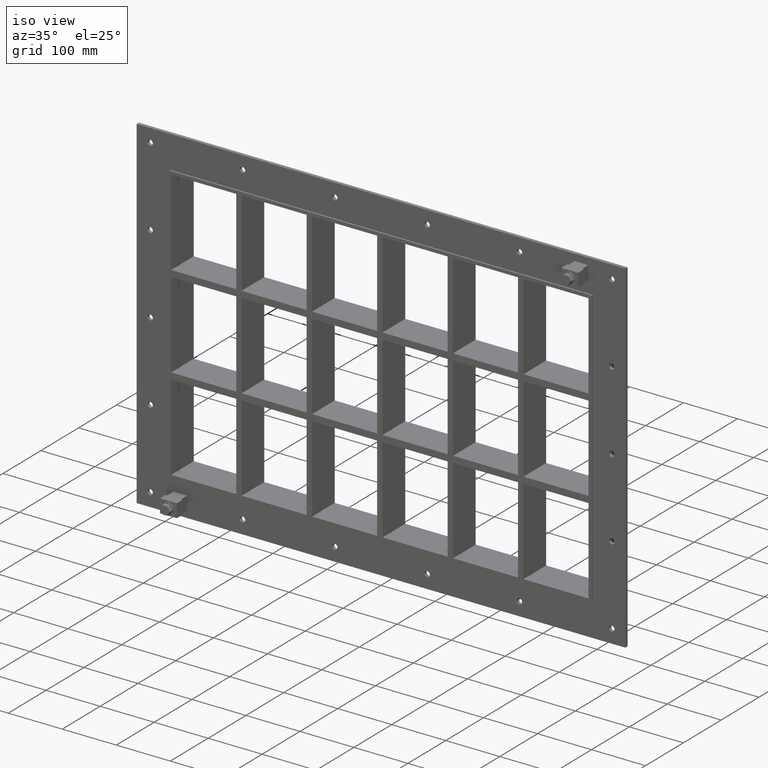
[diagram: clean part render]
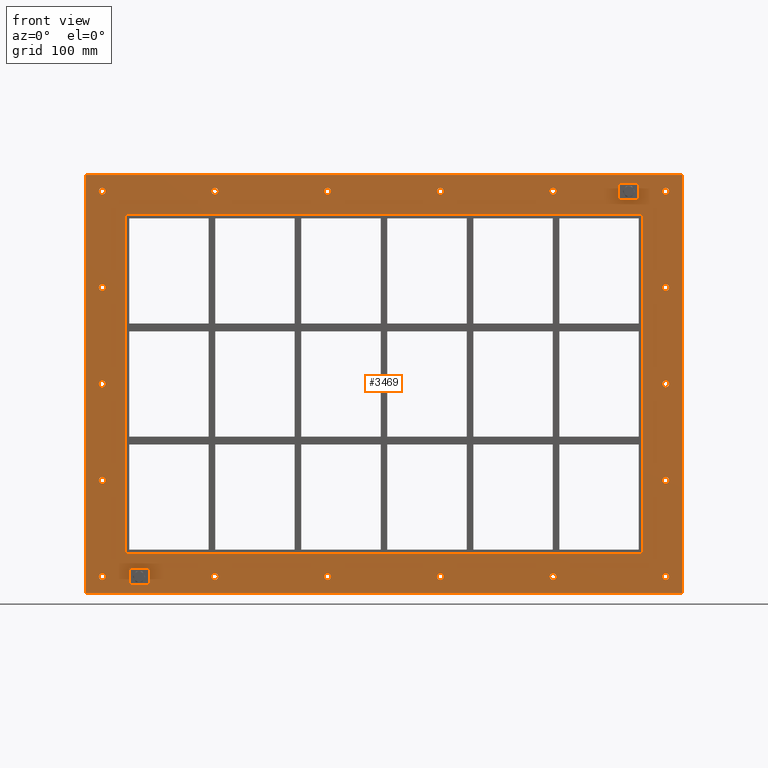
[diagram: tour spotlight — one face highlighted and labeled with its STEP entity id]
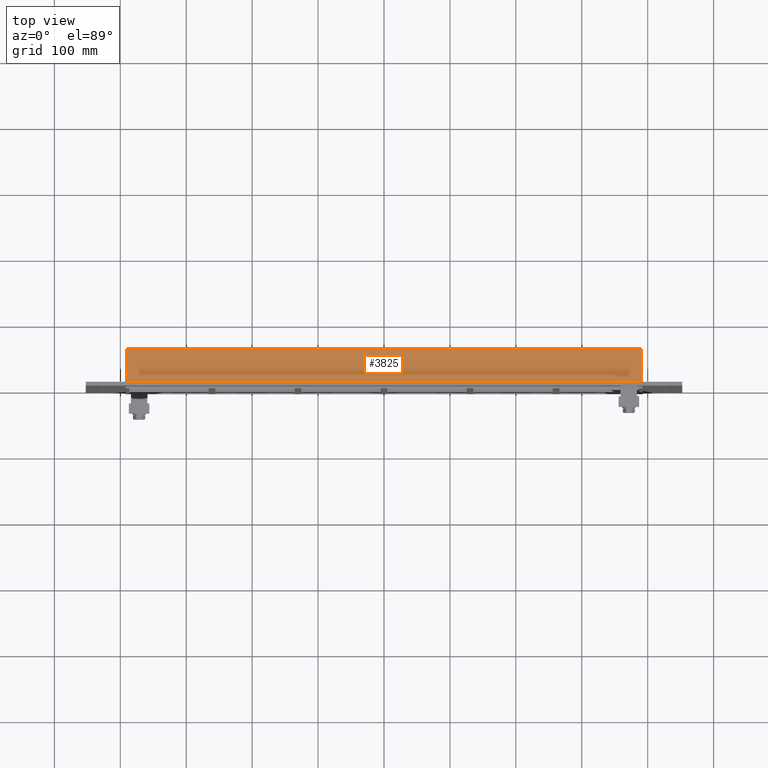
[diagram: tour spotlight — one face highlighted and labeled with its STEP entity id]
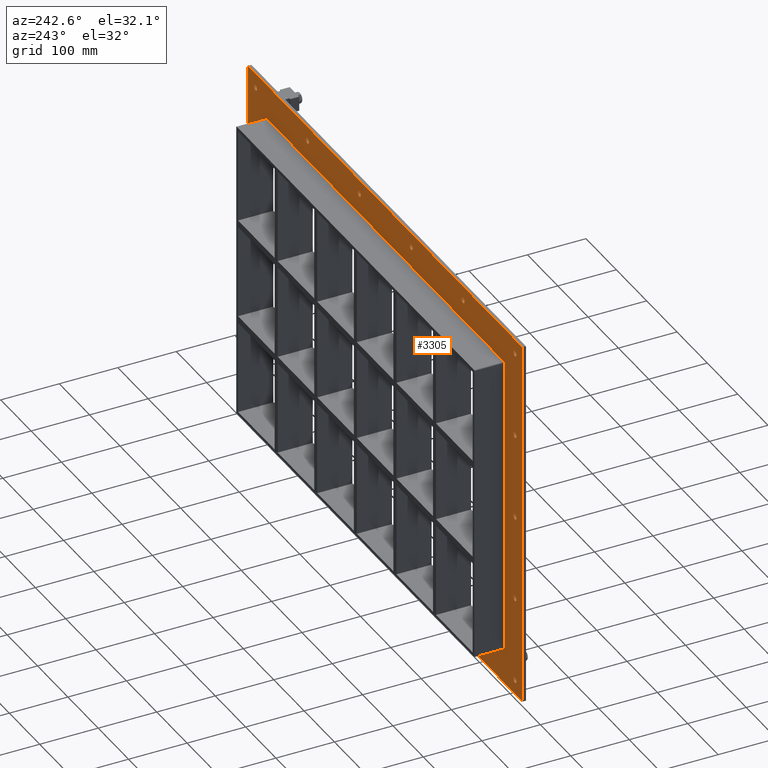
[diagram: tour spotlight — one face highlighted and labeled with its STEP entity id]
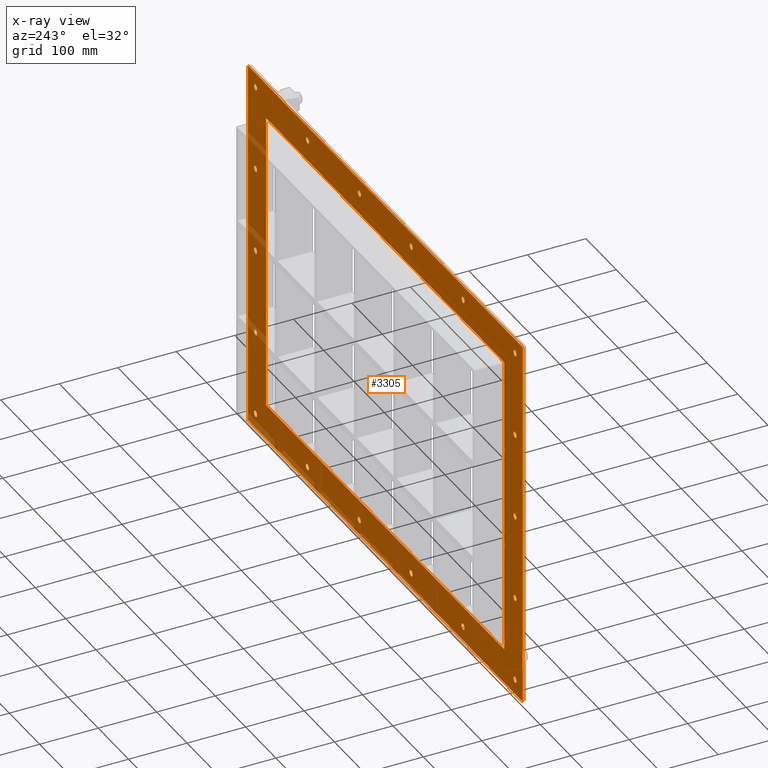
[diagram: x-ray of the same camera — body ghosted, this tour face saturated]
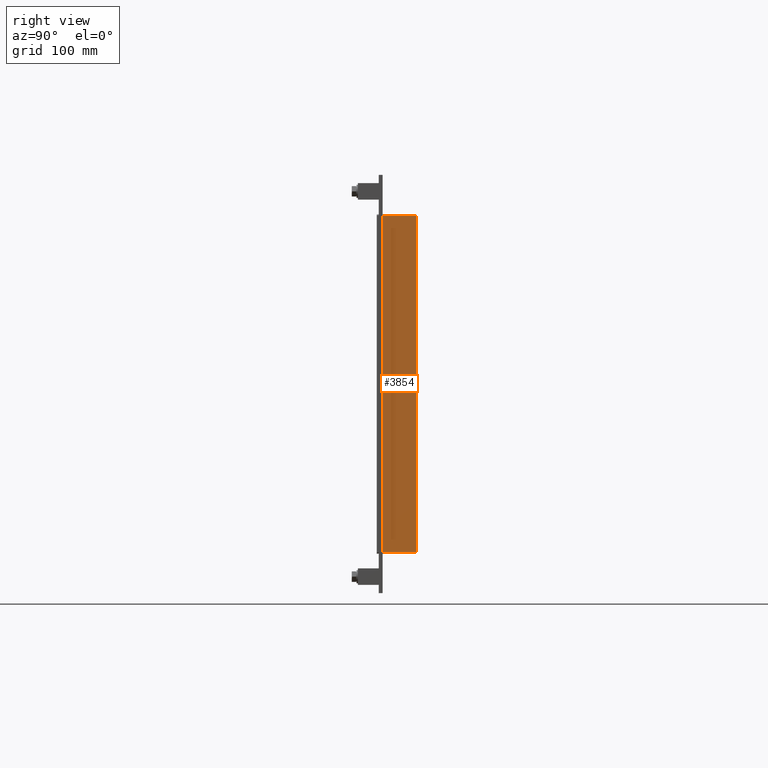
[diagram: tour spotlight — one face highlighted and labeled with its STEP entity id]
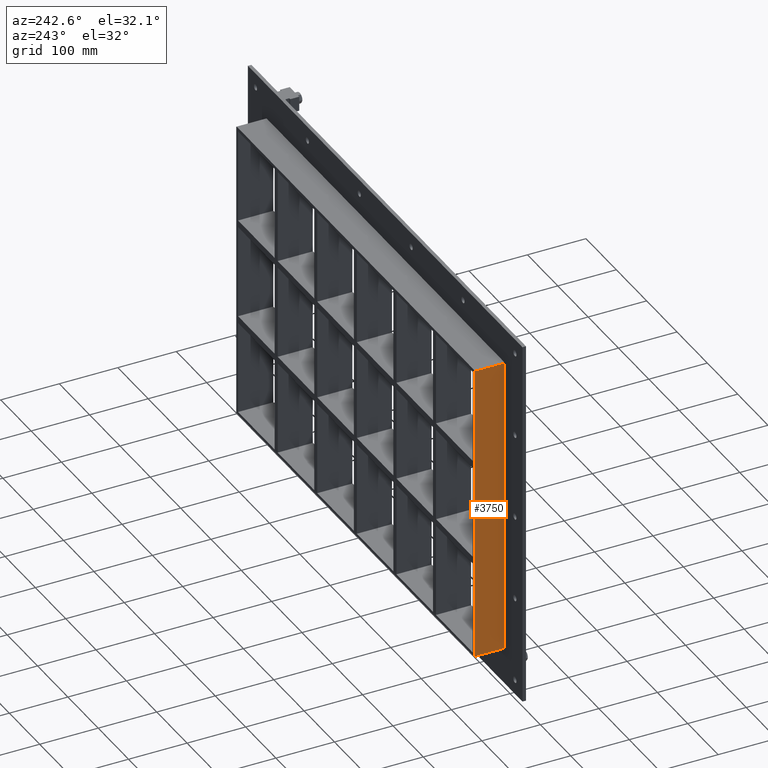
[diagram: tour spotlight — one face highlighted and labeled with its STEP entity id]
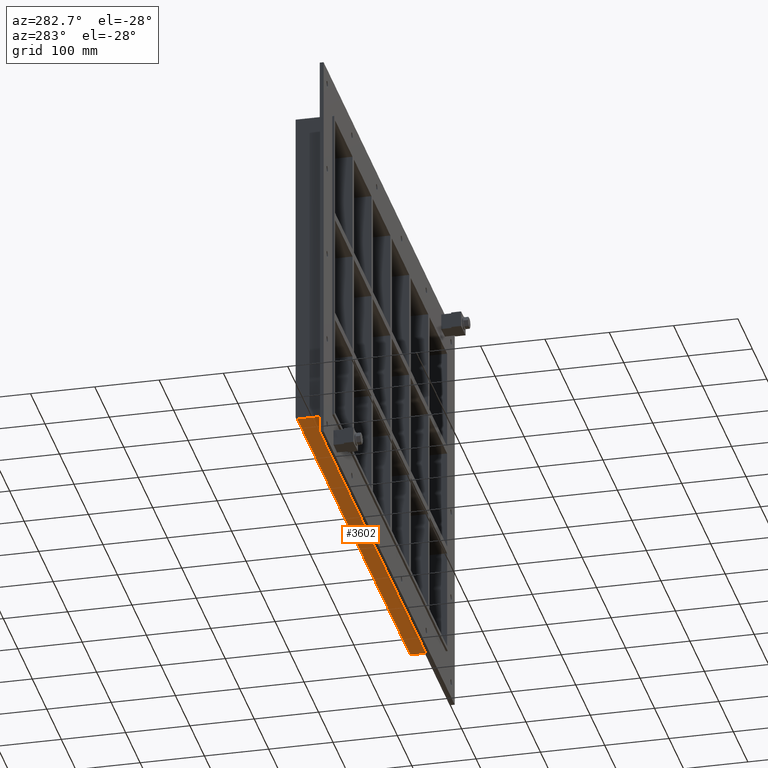
[diagram: tour spotlight — one face highlighted and labeled with its STEP entity id]
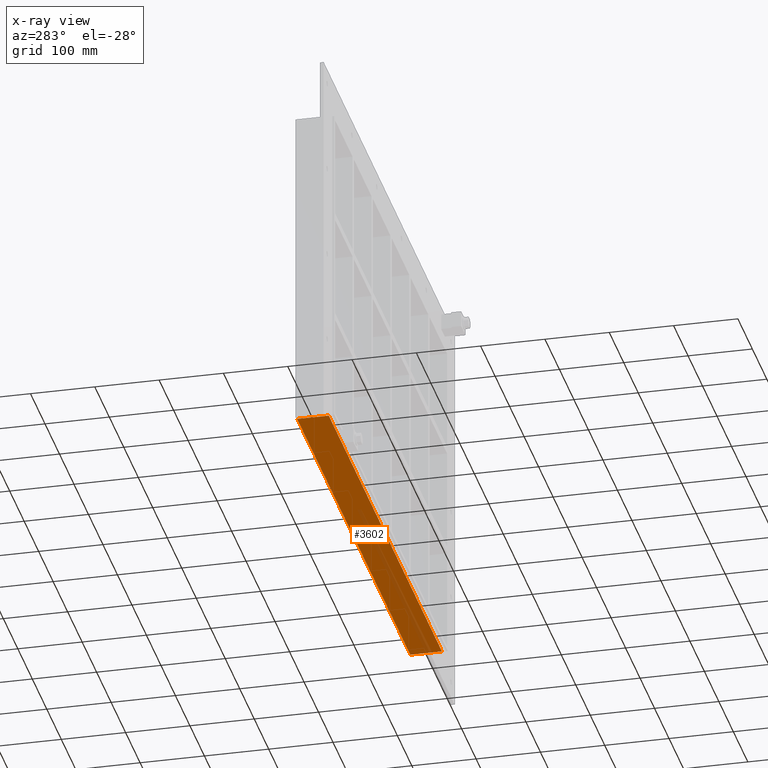
[diagram: x-ray of the same camera — body ghosted, this tour face saturated]
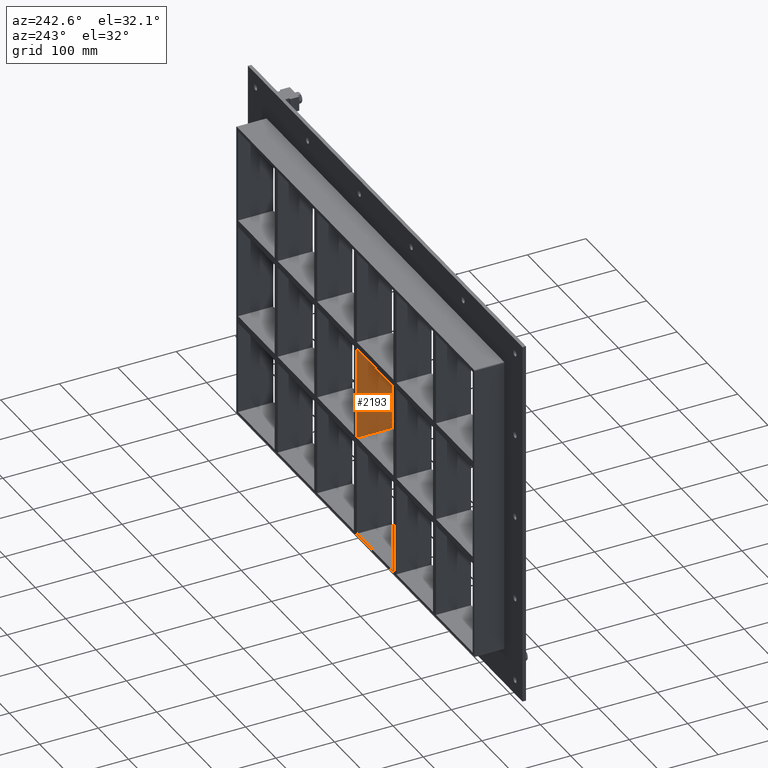
[diagram: tour spotlight — one face highlighted and labeled with its STEP entity id]
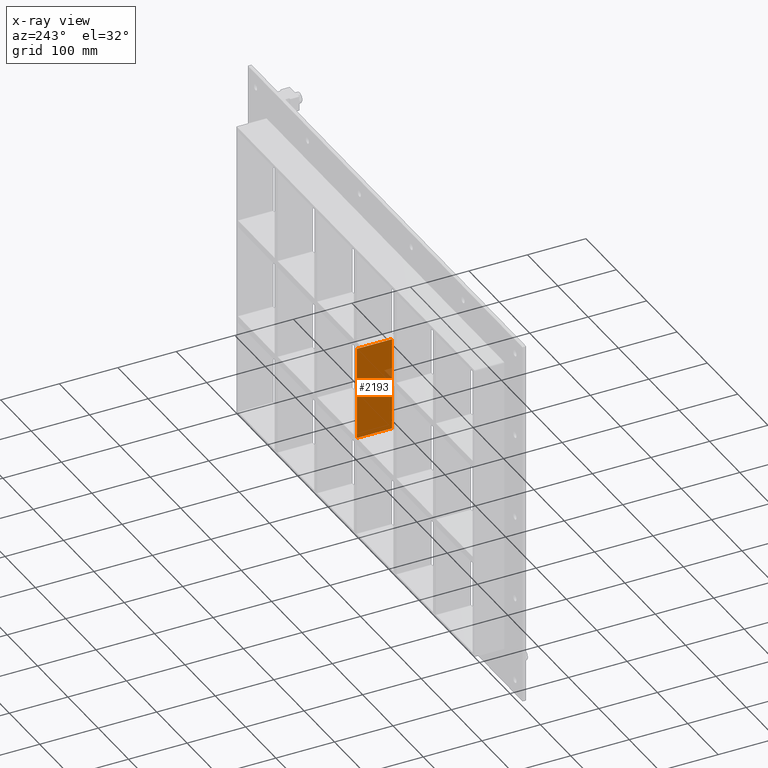
[diagram: x-ray of the same camera — body ghosted, this tour face saturated]
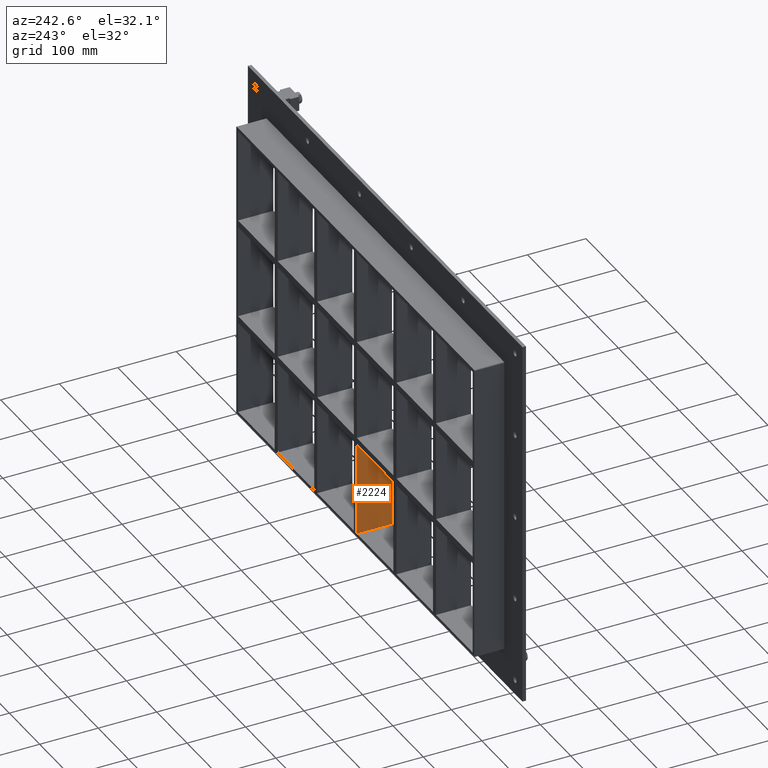
[diagram: tour spotlight — one face highlighted and labeled with its STEP entity id]
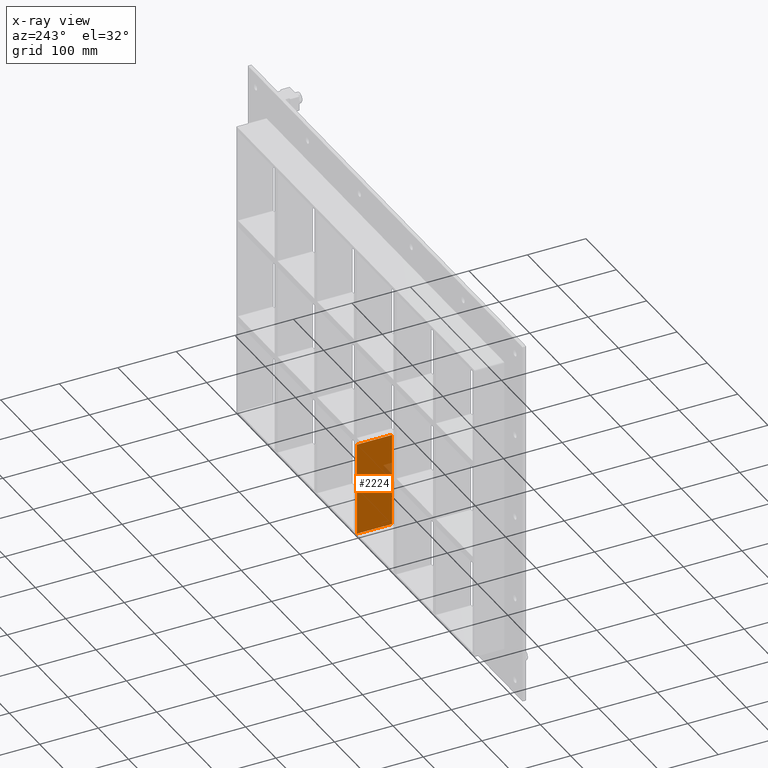
[diagram: x-ray of the same camera — body ghosted, this tour face saturated]
A machine part: a face-by-face anatomy tour. The part has 193 B-rep faces; the first image is the clean iso view, then the 8 largest visible faces are spotlighted one at a time (largest first), each with its STEP entity span.

Face 1 — front view, entity #3469. In plain terms, the highlighted planar face has unit normal (0, 1, 0).
Definition (entity closure, byte-faithful):
#84=CARTESIAN_POINT('',(-422.50000000000006,0.0,-292.25));
#85=VERTEX_POINT('',#84);
#86=CARTESIAN_POINT('',(-427.50000000000006,0.0,-292.25));
#87=DIRECTION('',(0.0,1.0,0.0));
#88=DIRECTION('',(1.0,0.0,0.0));
#89=AXIS2_PLACEMENT_3D('',#86,#87,#88);
#90=CIRCLE('',#89,5.0);
#91=EDGE_CURVE('',#85,#85,#90,.T.);
#112=CARTESIAN_POINT('',(432.49999999999994,0.0,-146.05000000000007));
#113=VERTEX_POINT('',#112);
#114=CARTESIAN_POINT('',(427.49999999999994,0.0,-146.05000000000007));
#115=DIRECTION('',(0.0,1.0,0.0));
#116=DIRECTION('',(1.0,0.0,0.0));
#117=AXIS2_PLACEMENT_3D('',#114,#115,#116);
#118=CIRCLE('',#117,5.0);
#119=EDGE_CURVE('',#113,#113,#118,.T.);
#140=CARTESIAN_POINT('',(-422.50000000000006,0.0,-146.05000000000007));
#141=VERTEX_POINT('',#140);
#142=CARTESIAN_POINT('',(-427.50000000000006,0.0,-146.05000000000007));
#143=DIRECTION('',(0.0,1.0,0.0));
#144=DIRECTION('',(1.0,0.0,0.0));
#145=AXIS2_PLACEMENT_3D('',#142,#143,#144);
#146=CIRCLE('',#145,5.0);
#147=EDGE_CURVE('',#141,#141,#146,.T.);
#168=CARTESIAN_POINT('',(432.49999999999994,0.0,0.14999999999997));
#169=VERTEX_POINT('',#168);
#170=CARTESIAN_POINT('',(427.49999999999994,0.0,0.14999999999997));
#171=DIRECTION('',(0.0,1.0,0.0));
#172=DIRECTION('',(1.0,0.0,0.0));
#173=AXIS2_PLACEMENT_3D('',#170,#171,#172);
#174=CIRCLE('',#173,5.0);
#175=EDGE_CURVE('',#169,#169,#174,.T.);
#196=CARTESIAN_POINT('',(-422.50000000000006,0.0,0.14999999999997));
#197=VERTEX_POINT('',#196);
#198=CARTESIAN_POINT('',(-427.50000000000006,0.0,0.14999999999997));
#199=DIRECTION('',(0.0,1.0,0.0));
#200=DIRECTION('',(1.0,0.0,0.0));
#201=AXIS2_PLACEMENT_3D('',#198,#199,#200);
#202=CIRCLE('',#201,5.0);
#203=EDGE_CURVE('',#197,#197,#202,.T.);
#224=CARTESIAN_POINT('',(432.49999999999994,0.0,146.34999999999997));
#225=VERTEX_POINT('',#224);
#226=CARTESIAN_POINT('',(427.49999999999994,0.0,146.34999999999997));
#227=DIRECTION('',(0.0,1.0,0.0));
#228=DIRECTION('',(1.0,0.0,0.0));
#229=AXIS2_PLACEMENT_3D('',#226,#227,#228);
#230=CIRCLE('',#229,5.0);
#231=EDGE_CURVE('',#225,#225,#230,.T.);
#252=CARTESIAN_POINT('',(-422.50000000000006,0.0,146.34999999999997));
#253=VERTEX_POINT('',#252);
#254=CARTESIAN_POINT('',(-427.50000000000006,0.0,146.34999999999997));
#255=DIRECTION('',(0.0,1.0,0.0));
#256=DIRECTION('',(1.0,0.0,0.0));
#257=AXIS2_PLACEMENT_3D('',#254,#255,#256);
#258=CIRCLE('',#257,5.0);
#259=EDGE_CURVE('',#253,#253,#258,.T.);
#280=CARTESIAN_POINT('',(-251.50000000000011,0.0,292.54999999999995));
#281=VERTEX_POINT('',#280);
#282=CARTESIAN_POINT('',(-256.50000000000011,0.0,292.54999999999995));
#283=DIRECTION('',(0.0,1.0,0.0));
#284=DIRECTION('',(1.0,0.0,0.0));
#285=AXIS2_PLACEMENT_3D('',#282,#283,#284);
#286=CIRCLE('',#285,5.0);
#287=EDGE_CURVE('',#281,#281,#286,.T.);
#308=CARTESIAN_POINT('',(-251.50000000000011,0.0,-292.25));
#309=VERTEX_POINT('',#308);
#310=CARTESIAN_POINT('',(-256.50000000000011,0.0,-292.25));
#311=DIRECTION('',(0.0,1.0,0.0));
#312=DIRECTION('',(1.0,0.0,0.0));
#313=AXIS2_PLACEMENT_3D('',#310,#311,#312);
#314=CIRCLE('',#313,5.0);
#315=EDGE_CURVE('',#309,#309,#314,.T.);
#336=CARTESIAN_POINT('',(-80.500000000000114,0.0,292.54999999999995));
#337=VERTEX_POINT('',#336);
#338=CARTESIAN_POINT('',(-85.500000000000114,0.0,292.54999999999995));
#339=DIRECTION('',(0.0,1.0,0.0));
#340=DIRECTION('',(1.0,0.0,0.0));
#341=AXIS2_PLACEMENT_3D('',#338,#339,#340);
#342=CIRCLE('',#341,5.0);
#343=EDGE_CURVE('',#337,#337,#342,.T.);
#364=CARTESIAN_POINT('',(-80.500000000000114,0.0,-292.25));
#365=VERTEX_POINT('',#364);
#366=CARTESIAN_POINT('',(-85.500000000000114,0.0,-292.25));
#367=DIRECTION('',(0.0,1.0,0.0));
#368=DIRECTION('',(1.0,0.0,0.0));
#369=AXIS2_PLACEMENT_3D('',#366,#367,#368);
#370=CIRCLE('',#369,5.0);
#371=EDGE_CURVE('',#365,#365,#370,.T.);
#392=CARTESIAN_POINT('',(90.499999999999901,0.0,292.54999999999995));
#393=VERTEX_POINT('',#392);
#394=CARTESIAN_POINT('',(85.499999999999901,0.0,292.54999999999995));
#395=DIRECTION('',(0.0,1.0,0.0));
#396=DIRECTION('',(1.0,0.0,0.0));
#397=AXIS2_PLACEMENT_3D('',#394,#395,#396);
#398=CIRCLE('',#397,5.0);
#399=EDGE_CURVE('',#393,#393,#398,.T.);
#420=CARTESIAN_POINT('',(90.499999999999901,0.0,-292.25));
#421=VERTEX_POINT('',#420);
#422=CARTESIAN_POINT('',(85.499999999999901,0.0,-292.25));
#423=DIRECTION('',(0.0,1.0,0.0));
#424=DIRECTION('',(1.0,0.0,0.0));
#425=AXIS2_PLACEMENT_3D('',#422,#423,#424);
#426=CIRCLE('',#425,5.0);
#427=EDGE_CURVE('',#421,#421,#426,.T.);
#448=CARTESIAN_POINT('',(261.49999999999989,0.0,292.54999999999995));
#449=VERTEX_POINT('',#448);
#450=CARTESIAN_POINT('',(256.49999999999989,0.0,292.54999999999995));
#451=DIRECTION('',(0.0,1.0,0.0));
#452=DIRECTION('',(1.0,0.0,0.0));
#453=AXIS2_PLACEMENT_3D('',#450,#451,#452);
#454=CIRCLE('',#453,5.0);
#455=EDGE_CURVE('',#449,#449,#454,.T.);
#476=CARTESIAN_POINT('',(261.49999999999989,0.0,-292.25));
#477=VERTEX_POINT('',#476);
#478=CARTESIAN_POINT('',(256.49999999999989,0.0,-292.25));
#479=DIRECTION('',(0.0,1.0,0.0));
#480=DIRECTION('',(1.0,0.0,0.0));
#481=AXIS2_PLACEMENT_3D('',#478,#479,#480);
#482=CIRCLE('',#481,5.0);
#483=EDGE_CURVE('',#477,#477,#482,.T.);
#504=CARTESIAN_POINT('',(432.49999999999994,0.0,-292.25));
#505=VERTEX_POINT('',#504);
#506=CARTESIAN_POINT('',(427.49999999999994,0.0,-292.25));
#507=DIRECTION('',(0.0,1.0,0.0));
#508=DIRECTION('',(1.0,0.0,0.0));
#509=AXIS2_PLACEMENT_3D('',#506,#507,#508);
#510=CIRCLE('',#509,5.0);
#511=EDGE_CURVE('',#505,#505,#510,.T.);
#532=CARTESIAN_POINT('',(-422.50000000000006,0.0,292.54999999999995));
#533=VERTEX_POINT('',#532);
#534=CARTESIAN_POINT('',(-427.50000000000006,0.0,292.54999999999995));
#535=DIRECTION('',(0.0,1.0,0.0));
#536=DIRECTION('',(1.0,0.0,0.0));
#537=AXIS2_PLACEMENT_3D('',#534,#535,#536);
#538=CIRCLE('',#537,5.0);
#539=EDGE_CURVE('',#533,#533,#538,.T.);
#560=CARTESIAN_POINT('',(432.49999999999994,0.0,292.54999999999995));
#561=VERTEX_POINT('',#560);
#562=CARTESIAN_POINT('',(427.49999999999994,0.0,292.54999999999995));
#563=DIRECTION('',(0.0,1.0,0.0));
#564=DIRECTION('',(1.0,0.0,0.0));
#565=AXIS2_PLACEMENT_3D('',#562,#563,#564);
#566=CIRCLE('',#565,5.0);
#567=EDGE_CURVE('',#561,#561,#566,.T.);
#3306=CARTESIAN_POINT('',(4.430796E-014,0.0,0.0));
#3307=DIRECTION('',(0.0,1.0,0.0));
#3308=DIRECTION('',(0.0,0.0,1.0));
#3309=AXIS2_PLACEMENT_3D('',#3306,#3307,#3308);
#3310=PLANE('',#3309);
#3311=CARTESIAN_POINT('',(-452.5,0.0,317.25));
#3312=VERTEX_POINT('',#3311);
#3313=CARTESIAN_POINT('',(452.50000000000006,0.0,317.25));
#3314=VERTEX_POINT('',#3313);
#3315=CARTESIAN_POINT('',(-452.5,0.0,317.25));
#3316=DIRECTION('',(1.0,0.0,0.0));
#3317=VECTOR('',#3316,905.0);
#3318=LINE('',#3315,#3317);
#3319=EDGE_CURVE('',#3312,#3314,#3318,.T.);
#3320=ORIENTED_EDGE('',*,*,#3319,.F.);
#3321=CARTESIAN_POINT('',(-452.5,0.0,-317.25));
#3322=VERTEX_POINT('',#3321);
#3323=CARTESIAN_POINT('',(-452.5,0.0,-317.25));
#3324=DIRECTION('',(0.0,0.0,1.0));
#3325=VECTOR('',#3324,634.5);
#3326=LINE('',#3323,#3325);
#3327=EDGE_CURVE('',#3322,#3312,#3326,.T.);
#3328=ORIENTED_EDGE('',*,*,#3327,.F.);
#3329=CARTESIAN_POINT('',(452.50000000000006,0.0,-317.25));
#3330=VERTEX_POINT('',#3329);
#3331=CARTESIAN_POINT('',(452.50000000000006,0.0,-317.25));
#3332=DIRECTION('',(-1.0,0.0,0.0));
#3333=VECTOR('',#3332,905.0);
#3334=LINE('',#3331,#3333);
#3335=EDGE_CURVE('',#3330,#3322,#3334,.T.);
#3336=ORIENTED_EDGE('',*,*,#3335,.F.);
#3337=CARTESIAN_POINT('',(452.50000000000006,0.0,317.25));
#3338=DIRECTION('',(0.0,0.0,-1.0));
#3339=VECTOR('',#3338,634.5);
#3340=LINE('',#3337,#3339);
#3341=EDGE_CURVE('',#3314,#3330,#3340,.T.);
#3342=ORIENTED_EDGE('',*,*,#3341,.F.);
#3343=EDGE_LOOP('',(#3320,#3328,#3336,#3342));
#3344=FACE_OUTER_BOUND('',#3343,.T.);
#3345=ORIENTED_EDGE('',*,*,#91,.T.);
#3346=EDGE_LOOP('',(#3345));
#3347=FACE_BOUND('',#3346,.T.);
#3348=ORIENTED_EDGE('',*,*,#119,.T.);
#3349=EDGE_LOOP('',(#3348));
#3350=FACE_BOUND('',#3349,.T.);
#3351=ORIENTED_EDGE('',*,*,#147,.T.);
#3352=EDGE_LOOP('',(#3351));
#3353=FACE_BOUND('',#3352,.T.);
#3354=ORIENTED_EDGE('',*,*,#175,.T.);
#3355=EDGE_LOOP('',(#3354));
#3356=FACE_BOUND('',#3355,.T.);
#3357=ORIENTED_EDGE('',*,*,#203,.T.);
#3358=EDGE_LOOP('',(#3357));
#3359=FACE_BOUND('',#3358,.T.);
#3360=ORIENTED_EDGE('',*,*,#231,.T.);
#3361=EDGE_LOOP('',(#3360));
#3362=FACE_BOUND('',#3361,.T.);
#3363=ORIENTED_EDGE('',*,*,#259,.T.);
#3364=EDGE_LOOP('',(#3363));
#3365=FACE_BOUND('',#3364,.T.);
#3366=ORIENTED_EDGE('',*,*,#287,.T.);
#3367=EDGE_LOOP('',(#3366));
#3368=FACE_BOUND('',#3367,.T.);
#3369=ORIENTED_EDGE('',*,*,#315,.T.);
#3370=EDGE_LOOP('',(#3369));
#3371=FACE_BOUND('',#3370,.T.);
#3372=ORIENTED_EDGE('',*,*,#343,.T.);
#3373=EDGE_LOOP('',(#3372));
#3374=FACE_BOUND('',#3373,.T.);
#3375=ORIENTED_EDGE('',*,*,#371,.T.);
#3376=EDGE_LOOP('',(#3375));
#3377=FACE_BOUND('',#3376,.T.);
#3378=ORIENTED_EDGE('',*,*,#399,.T.);
#3379=EDGE_LOOP('',(#3378));
#3380=FACE_BOUND('',#3379,.T.);
#3381=ORIENTED_EDGE('',*,*,#427,.T.);
#3382=EDGE_LOOP('',(#3381));
#3383=FACE_BOUND('',#3382,.T.);
#3384=ORIENTED_EDGE('',*,*,#455,.T.);
#3385=EDGE_LOOP('',(#3384));
#3386=FACE_BOUND('',#3385,.T.);
#3387=ORIENTED_EDGE('',*,*,#483,.T.);
#3388=EDGE_LOOP('',(#3387));
#3389=FACE_BOUND('',#3388,.T.);
#3390=ORIENTED_EDGE('',*,*,#511,.T.);
#3391=EDGE_LOOP('',(#3390));
#3392=FACE_BOUND('',#3391,.T.);
#3393=ORIENTED_EDGE('',*,*,#539,.T.);
#3394=EDGE_LOOP('',(#3393));
#3395=FACE_BOUND('',#3394,.T.);
#3396=ORIENTED_EDGE('',*,*,#567,.T.);
#3397=EDGE_LOOP('',(#3396));
#3398=FACE_BOUND('',#3397,.T.);
#3399=CARTESIAN_POINT('',(-390.50000000000006,0.0,257.25));
#3400=VERTEX_POINT('',#3399);
#3401=CARTESIAN_POINT('',(-392.50000000000006,0.0,255.25));
#3402=VERTEX_POINT('',#3401);
#3403=CARTESIAN_POINT('',(-390.50000000000006,0.0,255.25));
#3404=DIRECTION('',(0.0,-1.0,0.0));
#3405=DIRECTION('',(-0.707106781186548,0.0,0.707106781186548));
#3406=AXIS2_PLACEMENT_3D('',#3403,#3404,#3405);
#3407=CIRCLE('',#3406,2.0);
#3408=EDGE_CURVE('',#3400,#3402,#3407,.T.);
#3409=ORIENTED_EDGE('',*,*,#3408,.F.);
#3410=CARTESIAN_POINT('',(390.50000000000011,0.0,257.25));
#3411=VERTEX_POINT('',#3410);
#3412=CARTESIAN_POINT('',(390.50000000000011,0.0,257.25));
#3413=DIRECTION('',(-1.0,0.0,0.0));
#3414=VECTOR('',#3413,781.00000000000023);
#3415=LINE('',#3412,#3414);
#3416=EDGE_CURVE('',#3411,#3400,#3415,.T.);
#3417=ORIENTED_EDGE('',*,*,#3416,.F.);
#3418=CARTESIAN_POINT('',(392.50000000000011,0.0,255.25000000000003));
#3419=VERTEX_POINT('',#3418);
#3420=CARTESIAN_POINT('',(390.50000000000011,0.0,255.25000000000003));
#3421=DIRECTION('',(0.0,-1.0,0.0));
#3422=DIRECTION('',(0.70710678118656,0.0,0.707106781186535));
#3423=AXIS2_PLACEMENT_3D('',#3420,#3421,#3422);
#3424=CIRCLE('',#3423,2.0);
#3425=EDGE_CURVE('',#3419,#3411,#3424,.T.);
#3426=ORIENTED_EDGE('',*,*,#3425,.F.);
#3427=CARTESIAN_POINT('',(392.50000000000011,0.0,-255.25));
#3428=VERTEX_POINT('',#3427);
#3429=CARTESIAN_POINT('',(392.50000000000011,0.0,-255.25));
#3430=DIRECTION('',(0.0,0.0,1.0));
#3431=VECTOR('',#3430,510.5);
#3432=LINE('',#3429,#3431);
#3433=EDGE_CURVE('',#3428,#3419,#3432,.T.);
#3434=ORIENTED_EDGE('',*,*,#3433,.F.);
#3435=CARTESIAN_POINT('',(390.50000000000011,0.0,-257.25));
#3436=VERTEX_POINT('',#3435);
#3437=CARTESIAN_POINT('',(390.50000000000011,0.0,-255.25));
#3438=DIRECTION('',(0.0,-1.0,0.0));
#3439=DIRECTION('',(0.707106781186548,0.0,-0.707106781186548));
#3440=AXIS2_PLACEMENT_3D('',#3437,#3438,#3439);
#3441=CIRCLE('',#3440,2.0);
#3442=EDGE_CURVE('',#3436,#3428,#3441,.T.);
#3443=ORIENTED_EDGE('',*,*,#3442,.F.);
#3444=CARTESIAN_POINT('',(-390.5,0.0,-257.25));
#3445=VERTEX_POINT('',#3444);
#3446=CARTESIAN_POINT('',(-390.5,0.0,-257.25));
#3447=DIRECTION('',(1.0,0.0,0.0));
#3448=VECTOR('',#3447,781.00000000000011);
#3449=LINE('',#3446,#3448);
#3450=EDGE_CURVE('',#3445,#3436,#3449,.T.);
#3451=ORIENTED_EDGE('',*,*,#3450,.F.);
#3452=CARTESIAN_POINT('',(-392.50000000000006,0.0,-255.25));
#3453=VERTEX_POINT('',#3452);
#3454=CARTESIAN_POINT('',(-390.5,0.0,-255.25));
#3455=DIRECTION('',(0.0,-1.0,0.0));
#3456=DIRECTION('',(-0.707106781186573,0.0,-0.707106781186523));
#3457=AXIS2_PLACEMENT_3D('',#3454,#3455,#3456);
#3458=CIRCLE('',#3457,2.0);
#3459=EDGE_CURVE('',#3453,#3445,#3458,.T.);
#3460=ORIENTED_EDGE('',*,*,#3459,.F.);
#3461=CARTESIAN_POINT('',(-392.50000000000006,0.0,255.25));
#3462=DIRECTION('',(0.0,0.0,-1.0));
#3463=VECTOR('',#3462,510.5);
#3464=LINE('',#3461,#3463);
#3465=EDGE_CURVE('',#3402,#3453,#3464,.T.);
#3466=ORIENTED_EDGE('',*,*,#3465,.F.);
#3467=EDGE_LOOP('',(#3409,#3417,#3426,#3434,#3443,#3451,#3460,#3466));
#3468=FACE_BOUND('',#3467,.T.);
#3469=ADVANCED_FACE('',(#3344,#3347,#3350,#3353,#3356,#3359,#3362,#3365,#3368,#3371,#3374,#3377,#3380,#3383,#3386,#3389,#3392,#3395,#3398,#3468),#3310,.F.);

Face 2 — top view, entity #3825. In plain terms, the highlighted planar face has unit normal (0, 0, 1).
Definition (entity closure, byte-faithful):
#1509=CARTESIAN_POINT('',(-390.50000000000006,57.0,257.25));
#1510=VERTEX_POINT('',#1509);
#1518=CARTESIAN_POINT('',(390.50000000000011,57.0,257.25));
#1519=VERTEX_POINT('',#1518);
#1520=CARTESIAN_POINT('',(-390.5,57.0,257.25));
#1521=DIRECTION('',(1.0,0.0,0.0));
#1522=VECTOR('',#1521,781.00000000000011);
#1523=LINE('',#1520,#1522);
#1524=EDGE_CURVE('',#1510,#1519,#1523,.T.);
#3237=CARTESIAN_POINT('',(-390.50000000000006,6.000000000000001,257.25));
#3238=VERTEX_POINT('',#3237);
#3288=CARTESIAN_POINT('',(390.50000000000011,6.000000000000001,257.25));
#3289=VERTEX_POINT('',#3288);
#3297=CARTESIAN_POINT('',(-390.50000000000006,6.000000000000001,257.25));
#3298=DIRECTION('',(1.0,0.0,0.0));
#3299=VECTOR('',#3298,781.00000000000023);
#3300=LINE('',#3297,#3299);
#3301=EDGE_CURVE('',#3238,#3289,#3300,.T.);
#3798=CARTESIAN_POINT('',(-390.50000000000006,6.000000000000001,257.25));
#3799=DIRECTION('',(0.0,1.0,0.0));
#3800=VECTOR('',#3799,51.0);
#3801=LINE('',#3798,#3800);
#3802=EDGE_CURVE('',#3238,#1510,#3801,.T.);
#3809=CARTESIAN_POINT('',(-392.50000000000006,0.0,257.25));
#3810=DIRECTION('',(0.0,0.0,1.0));
#3811=DIRECTION('',(1.0,0.0,0.0));
#3812=AXIS2_PLACEMENT_3D('',#3809,#3810,#3811);
#3813=PLANE('',#3812);
#3814=ORIENTED_EDGE('',*,*,#3301,.T.);
#3815=CARTESIAN_POINT('',(390.50000000000011,57.0,257.25));
#3816=DIRECTION('',(0.0,-1.0,0.0));
#3817=VECTOR('',#3816,51.0);
#3818=LINE('',#3815,#3817);
#3819=EDGE_CURVE('',#1519,#3289,#3818,.T.);
#3820=ORIENTED_EDGE('',*,*,#3819,.F.);
#3821=ORIENTED_EDGE('',*,*,#1524,.F.);
#3822=ORIENTED_EDGE('',*,*,#3802,.F.);
#3823=EDGE_LOOP('',(#3814,#3820,#3821,#3822));
#3824=FACE_OUTER_BOUND('',#3823,.T.);
#3825=ADVANCED_FACE('',(#3824),#3813,.T.);

Face 3 — auxiliary view, entity #3305. An x-ray twin of the same camera follows (body ghosted, this face saturated) — the face is partly hidden behind the body. In plain terms, the highlighted planar face has unit normal (0, 1, 0).
Definition (entity closure, byte-faithful):
#73=CARTESIAN_POINT('',(-432.50000000000006,5.999999999999943,-292.25));
#74=VERTEX_POINT('',#73);
#75=CARTESIAN_POINT('',(-427.50000000000006,5.999999999999943,-292.25));
#76=DIRECTION('',(0.0,-1.0,0.0));
#77=DIRECTION('',(1.0,0.0,0.0));
#78=AXIS2_PLACEMENT_3D('',#75,#76,#77);
#79=CIRCLE('',#78,5.0);
#80=EDGE_CURVE('',#74,#74,#79,.T.);
#101=CARTESIAN_POINT('',(422.49999999999994,5.999999999999943,-146.05000000000007));
#102=VERTEX_POINT('',#101);
#103=CARTESIAN_POINT('',(427.49999999999994,5.999999999999943,-146.05000000000007));
#104=DIRECTION('',(0.0,-1.0,0.0));
#105=DIRECTION('',(1.0,0.0,0.0));
#106=AXIS2_PLACEMENT_3D('',#103,#104,#105);
#107=CIRCLE('',#106,5.0);
#108=EDGE_CURVE('',#102,#102,#107,.T.);
#129=CARTESIAN_POINT('',(-432.50000000000006,5.999999999999943,-146.05000000000007));
#130=VERTEX_POINT('',#129);
#131=CARTESIAN_POINT('',(-427.50000000000006,5.999999999999943,-146.05000000000007));
#132=DIRECTION('',(0.0,-1.0,0.0));
#133=DIRECTION('',(1.0,0.0,0.0));
#134=AXIS2_PLACEMENT_3D('',#131,#132,#133);
#135=CIRCLE('',#134,5.0);
#136=EDGE_CURVE('',#130,#130,#135,.T.);
#157=CARTESIAN_POINT('',(422.49999999999994,5.999999999999943,0.14999999999997));
#158=VERTEX_POINT('',#157);
#159=CARTESIAN_POINT('',(427.49999999999994,5.999999999999943,0.14999999999997));
#160=DIRECTION('',(0.0,-1.0,0.0));
#161=DIRECTION('',(1.0,0.0,0.0));
#162=AXIS2_PLACEMENT_3D('',#159,#160,#161);
#163=CIRCLE('',#162,5.0);
#164=EDGE_CURVE('',#158,#158,#163,.T.);
#185=CARTESIAN_POINT('',(-432.50000000000006,5.999999999999943,0.14999999999997));
#186=VERTEX_POINT('',#185);
#187=CARTESIAN_POINT('',(-427.50000000000006,5.999999999999943,0.14999999999997));
#188=DIRECTION('',(0.0,-1.0,0.0));
#189=DIRECTION('',(1.0,0.0,0.0));
#190=AXIS2_PLACEMENT_3D('',#187,#188,#189);
#191=CIRCLE('',#190,5.0);
#192=EDGE_CURVE('',#186,#186,#191,.T.);
#213=CARTESIAN_POINT('',(422.49999999999994,5.999999999999943,146.34999999999997));
#214=VERTEX_POINT('',#213);
#215=CARTESIAN_POINT('',(427.49999999999994,5.999999999999943,146.34999999999997));
#216=DIRECTION('',(0.0,-1.0,0.0));
#217=DIRECTION('',(1.0,0.0,0.0));
#218=AXIS2_PLACEMENT_3D('',#215,#216,#217);
#219=CIRCLE('',#218,5.0);
#220=EDGE_CURVE('',#214,#214,#219,.T.);
#241=CARTESIAN_POINT('',(-432.50000000000006,5.999999999999943,146.34999999999997));
#242=VERTEX_POINT('',#241);
#243=CARTESIAN_POINT('',(-427.50000000000006,5.999999999999943,146.34999999999997));
#244=DIRECTION('',(0.0,-1.0,0.0));
#245=DIRECTION('',(1.0,0.0,0.0));
#246=AXIS2_PLACEMENT_3D('',#243,#244,#245);
#247=CIRCLE('',#246,5.0);
#248=EDGE_CURVE('',#242,#242,#247,.T.);
#269=CARTESIAN_POINT('',(-261.50000000000011,5.999999999999943,292.54999999999995));
#270=VERTEX_POINT('',#269);
#271=CARTESIAN_POINT('',(-256.50000000000011,5.999999999999943,292.54999999999995));
#272=DIRECTION('',(0.0,-1.0,0.0));
#273=DIRECTION('',(1.0,0.0,0.0));
#274=AXIS2_PLACEMENT_3D('',#271,#272,#273);
#275=CIRCLE('',#274,5.0);
#276=EDGE_CURVE('',#270,#270,#275,.T.);
#297=CARTESIAN_POINT('',(-261.50000000000011,5.999999999999943,-292.25));
#298=VERTEX_POINT('',#297);
#299=CARTESIAN_POINT('',(-256.50000000000011,5.999999999999943,-292.25));
#300=DIRECTION('',(0.0,-1.0,0.0));
#301=DIRECTION('',(1.0,0.0,0.0));
#302=AXIS2_PLACEMENT_3D('',#299,#300,#301);
#303=CIRCLE('',#302,5.0);
#304=EDGE_CURVE('',#298,#298,#303,.T.);
#325=CARTESIAN_POINT('',(-90.500000000000114,5.999999999999943,292.54999999999995));
#326=VERTEX_POINT('',#325);
#327=CARTESIAN_POINT('',(-85.500000000000114,5.999999999999943,292.54999999999995));
#328=DIRECTION('',(0.0,-1.0,0.0));
#329=DIRECTION('',(1.0,0.0,0.0));
#330=AXIS2_PLACEMENT_3D('',#327,#328,#329);
#331=CIRCLE('',#330,5.0);
#332=EDGE_CURVE('',#326,#326,#331,.T.);
#353=CARTESIAN_POINT('',(-90.500000000000114,5.999999999999943,-292.25));
#354=VERTEX_POINT('',#353);
#355=CARTESIAN_POINT('',(-85.500000000000114,5.999999999999943,-292.25));
#356=DIRECTION('',(0.0,-1.0,0.0));
#357=DIRECTION('',(1.0,0.0,0.0));
#358=AXIS2_PLACEMENT_3D('',#355,#356,#357);
#359=CIRCLE('',#358,5.0);
#360=EDGE_CURVE('',#354,#354,#359,.T.);
#381=CARTESIAN_POINT('',(80.499999999999901,5.999999999999943,292.54999999999995));
#382=VERTEX_POINT('',#381);
#383=CARTESIAN_POINT('',(85.499999999999901,5.999999999999943,292.54999999999995));
#384=DIRECTION('',(0.0,-1.0,0.0));
#385=DIRECTION('',(1.0,0.0,0.0));
#386=AXIS2_PLACEMENT_3D('',#383,#384,#385);
#387=CIRCLE('',#386,5.0);
#388=EDGE_CURVE('',#382,#382,#387,.T.);
#409=CARTESIAN_POINT('',(80.499999999999901,5.999999999999943,-292.25));
#410=VERTEX_POINT('',#409);
#411=CARTESIAN_POINT('',(85.499999999999901,5.999999999999943,-292.25));
#412=DIRECTION('',(0.0,-1.0,0.0));
#413=DIRECTION('',(1.0,0.0,0.0));
#414=AXIS2_PLACEMENT_3D('',#411,#412,#413);
#415=CIRCLE('',#414,5.0);
#416=EDGE_CURVE('',#410,#410,#415,.T.);
#437=CARTESIAN_POINT('',(251.49999999999991,5.999999999999943,292.54999999999995));
#438=VERTEX_POINT('',#437);
#439=CARTESIAN_POINT('',(256.49999999999989,5.999999999999943,292.54999999999995));
#440=DIRECTION('',(0.0,-1.0,0.0));
#441=DIRECTION('',(1.0,0.0,0.0));
#442=AXIS2_PLACEMENT_3D('',#439,#440,#441);
#443=CIRCLE('',#442,5.0);
#444=EDGE_CURVE('',#438,#438,#443,.T.);
#465=CARTESIAN_POINT('',(251.49999999999991,5.999999999999943,-292.25));
#466=VERTEX_POINT('',#465);
#467=CARTESIAN_POINT('',(256.49999999999989,5.999999999999943,-292.25));
#468=DIRECTION('',(0.0,-1.0,0.0));
#469=DIRECTION('',(1.0,0.0,0.0));
#470=AXIS2_PLACEMENT_3D('',#467,#468,#469);
#471=CIRCLE('',#470,5.0);
#472=EDGE_CURVE('',#466,#466,#471,.T.);
#493=CARTESIAN_POINT('',(422.49999999999994,5.999999999999943,-292.25));
#494=VERTEX_POINT('',#493);
#495=CARTESIAN_POINT('',(427.49999999999994,5.999999999999943,-292.25));
#496=DIRECTION('',(0.0,-1.0,0.0));
#497=DIRECTION('',(1.0,0.0,0.0));
#498=AXIS2_PLACEMENT_3D('',#495,#496,#497);
#499=CIRCLE('',#498,5.0);
#500=EDGE_CURVE('',#494,#494,#499,.T.);
#521=CARTESIAN_POINT('',(-432.50000000000006,5.999999999999943,292.54999999999995));
#522=VERTEX_POINT('',#521);
#523=CARTESIAN_POINT('',(-427.50000000000006,5.999999999999943,292.54999999999995));
#524=DIRECTION('',(0.0,-1.0,0.0));
#525=DIRECTION('',(1.0,0.0,0.0));
#526=AXIS2_PLACEMENT_3D('',#523,#524,#525);
#527=CIRCLE('',#526,5.0);
#528=EDGE_CURVE('',#522,#522,#527,.T.);
#549=CARTESIAN_POINT('',(422.49999999999994,5.999999999999943,292.54999999999995));
#550=VERTEX_POINT('',#549);
#551=CARTESIAN_POINT('',(427.49999999999994,5.999999999999943,292.54999999999995));
#552=DIRECTION('',(0.0,-1.0,0.0));
#553=DIRECTION('',(1.0,0.0,0.0));
#554=AXIS2_PLACEMENT_3D('',#551,#552,#553);
#555=CIRCLE('',#554,5.0);
#556=EDGE_CURVE('',#550,#550,#555,.T.);
#3142=CARTESIAN_POINT('',(4.430796E-014,6.000000000000001,0.0));
#3143=DIRECTION('',(0.0,1.0,0.0));
#3144=DIRECTION('',(0.0,0.0,1.0));
#3145=AXIS2_PLACEMENT_3D('',#3142,#3143,#3144);
#3146=PLANE('',#3145);
#3147=CARTESIAN_POINT('',(-452.5,6.000000000000001,317.25));
#3148=VERTEX_POINT('',#3147);
#3149=CARTESIAN_POINT('',(452.5,6.000000000000001,317.25));
#3150=VERTEX_POINT('',#3149);
#3151=CARTESIAN_POINT('',(-452.5,6.000000000000001,317.25));
#3152=DIRECTION('',(1.0,0.0,0.0));
#3153=VECTOR('',#3152,905.0);
#3154=LINE('',#3151,#3153);
#3155=EDGE_CURVE('',#3148,#3150,#3154,.T.);
#3156=ORIENTED_EDGE('',*,*,#3155,.T.);
#3157=CARTESIAN_POINT('',(452.5,6.000000000000001,-317.25));
#3158=VERTEX_POINT('',#3157);
#3159=CARTESIAN_POINT('',(452.50000000000006,6.000000000000001,317.25));
#3160=DIRECTION('',(0.0,0.0,-1.0));
#3161=VECTOR('',#3160,634.5);
#3162=LINE('',#3159,#3161);
#3163=EDGE_CURVE('',#3150,#3158,#3162,.T.);
#3164=ORIENTED_EDGE('',*,*,#3163,.T.);
#3165=CARTESIAN_POINT('',(-452.5,6.000000000000001,-317.25));
#3166=VERTEX_POINT('',#3165);
#3167=CARTESIAN_POINT('',(452.50000000000006,6.000000000000001,-317.25));
#3168=DIRECTION('',(-1.0,0.0,0.0));
#3169=VECTOR('',#3168,905.0);
#3170=LINE('',#3167,#3169);
#3171=EDGE_CURVE('',#3158,#3166,#3170,.T.);
#3172=ORIENTED_EDGE('',*,*,#3171,.T.);
#3173=CARTESIAN_POINT('',(-452.5,6.000000000000001,-317.25));
#3174=DIRECTION('',(0.0,0.0,1.0));
#3175=VECTOR('',#3174,634.5);
#3176=LINE('',#3173,#3175);
#3177=EDGE_CURVE('',#3166,#3148,#3176,.T.);
#3178=ORIENTED_EDGE('',*,*,#3177,.T.);
#3179=EDGE_LOOP('',(#3156,#3164,#3172,#3178));
#3180=FACE_OUTER_BOUND('',#3179,.T.);
#3181=ORIENTED_EDGE('',*,*,#80,.T.);
#3182=EDGE_LOOP('',(#3181));
#3183=FACE_BOUND('',#3182,.T.);
#3184=ORIENTED_EDGE('',*,*,#108,.T.);
#3185=EDGE_LOOP('',(#3184));
#3186=FACE_BOUND('',#3185,.T.);
#3187=ORIENTED_EDGE('',*,*,#136,.T.);
#3188=EDGE_LOOP('',(#3187));
#3189=FACE_BOUND('',#3188,.T.);
#3190=ORIENTED_EDGE('',*,*,#164,.T.);
#3191=EDGE_LOOP('',(#3190));
#3192=FACE_BOUND('',#3191,.T.);
#3193=ORIENTED_EDGE('',*,*,#192,.T.);
#3194=EDGE_LOOP('',(#3193));
#3195=FACE_BOUND('',#3194,.T.);
#3196=ORIENTED_EDGE('',*,*,#220,.T.);
#3197=EDGE_LOOP('',(#3196));
#3198=FACE_BOUND('',#3197,.T.);
#3199=ORIENTED_EDGE('',*,*,#248,.T.);
#3200=EDGE_LOOP('',(#3199));
#3201=FACE_BOUND('',#3200,.T.);
#3202=ORIENTED_EDGE('',*,*,#276,.T.);
#3203=EDGE_LOOP('',(#3202));
#3204=FACE_BOUND('',#3203,.T.);
#3205=ORIENTED_EDGE('',*,*,#304,.T.);
#3206=EDGE_LOOP('',(#3205));
#3207=FACE_BOUND('',#3206,.T.);
#3208=ORIENTED_EDGE('',*,*,#332,.T.);
#3209=EDGE_LOOP('',(#3208));
#3210=FACE_BOUND('',#3209,.T.);
#3211=ORIENTED_EDGE('',*,*,#360,.T.);
#3212=EDGE_LOOP('',(#3211));
#3213=FACE_BOUND('',#3212,.T.);
#3214=ORIENTED_EDGE('',*,*,#388,.T.);
#3215=EDGE_LOOP('',(#3214));
#3216=FACE_BOUND('',#3215,.T.);
#3217=ORIENTED_EDGE('',*,*,#416,.T.);
#3218=EDGE_LOOP('',(#3217));
#3219=FACE_BOUND('',#3218,.T.);
#3220=ORIENTED_EDGE('',*,*,#444,.T.);
#3221=EDGE_LOOP('',(#3220));
#3222=FACE_BOUND('',#3221,.T.);
#3223=ORIENTED_EDGE('',*,*,#472,.T.);
#3224=EDGE_LOOP('',(#3223));
#3225=FACE_BOUND('',#3224,.T.);
#3226=ORIENTED_EDGE('',*,*,#500,.T.);
#3227=EDGE_LOOP('',(#3226));
#3228=FACE_BOUND('',#3227,.T.);
#3229=ORIENTED_EDGE('',*,*,#528,.T.);
#3230=EDGE_LOOP('',(#3229));
#3231=FACE_BOUND('',#3230,.T.);
#3232=ORIENTED_EDGE('',*,*,#556,.T.);
#3233=EDGE_LOOP('',(#3232));
#3234=FACE_BOUND('',#3233,.T.);
#3235=CARTESIAN_POINT('',(-392.50000000000006,6.000000000000001,255.25));
#3236=VERTEX_POINT('',#3235);
#3237=CARTESIAN_POINT('',(-390.50000000000006,6.000000000000001,257.25));
#3238=VERTEX_POINT('',#3237);
#3239=CARTESIAN_POINT('',(-390.50000000000006,6.000000000000001,255.25));
#3240=DIRECTION('',(0.0,1.0,0.0));
#3241=DIRECTION('',(-0.707106781186548,0.0,0.707106781186548));
#3242=AXIS2_PLACEMENT_3D('',#3239,#3240,#3241);
#3243=CIRCLE('',#3242,2.0);
#3244=EDGE_CURVE('',#3236,#3238,#3243,.T.);
#3245=ORIENTED_EDGE('',*,*,#3244,.F.);
#3246=CARTESIAN_POINT('',(-392.50000000000006,6.000000000000001,-255.25));
#3247=VERTEX_POINT('',#3246);
#3248=CARTESIAN_POINT('',(-392.50000000000006,6.000000000000001,-255.24999999999997));
#3249=DIRECTION('',(0.0,0.0,1.0));
#3250=VECTOR('',#3249,510.5);
#3251=LINE('',#3248,#3250);
#3252=EDGE_CURVE('',#3247,#3236,#3251,.T.);
#3253=ORIENTED_EDGE('',*,*,#3252,.F.);
#3254=CARTESIAN_POINT('',(-390.5,6.000000000000001,-257.25));
#3255=VERTEX_POINT('',#3254);
#3256=CARTESIAN_POINT('',(-390.5,6.000000000000001,-255.25));
#3257=DIRECTION('',(0.0,1.0,0.0));
#3258=DIRECTION('',(-0.707106781186573,0.0,-0.707106781186523));
#3259=AXIS2_PLACEMENT_3D('',#3256,#3257,#3258);
#3260=CIRCLE('',#3259,2.0);
#3261=EDGE_CURVE('',#3255,#3247,#3260,.T.);
#3262=ORIENTED_EDGE('',*,*,#3261,.F.);
#3263=CARTESIAN_POINT('',(390.50000000000011,6.000000000000001,-257.25));
#3264=VERTEX_POINT('',#3263);
#3265=CARTESIAN_POINT('',(390.50000000000011,6.000000000000001,-257.25));
#3266=DIRECTION('',(-1.0,0.0,0.0));
#3267=VECTOR('',#3266,781.00000000000011);
#3268=LINE('',#3265,#3267);
#3269=EDGE_CURVE('',#3264,#3255,#3268,.T.);
#3270=ORIENTED_EDGE('',*,*,#3269,.F.);
#3271=CARTESIAN_POINT('',(392.50000000000011,6.000000000000001,-255.25));
#3272=VERTEX_POINT('',#3271);
#3273=CARTESIAN_POINT('',(390.50000000000011,6.000000000000001,-255.25));
#3274=DIRECTION('',(0.0,1.0,0.0));
#3275=DIRECTION('',(0.707106781186548,0.0,-0.707106781186548));
#3276=AXIS2_PLACEMENT_3D('',#3273,#3274,#3275);
#3277=CIRCLE('',#3276,2.0);
#3278=EDGE_CURVE('',#3272,#3264,#3277,.T.);
#3279=ORIENTED_EDGE('',*,*,#3278,.F.);
#3280=CARTESIAN_POINT('',(392.50000000000011,6.000000000000001,255.25000000000003));
#3281=VERTEX_POINT('',#3280);
#3282=CARTESIAN_POINT('',(392.50000000000011,6.000000000000001,255.25));
#3283=DIRECTION('',(0.0,0.0,-1.0));
#3284=VECTOR('',#3283,510.5);
#3285=LINE('',#3282,#3284);
#3286=EDGE_CURVE('',#3281,#3272,#3285,.T.);
#3287=ORIENTED_EDGE('',*,*,#3286,.F.);
#3288=CARTESIAN_POINT('',(390.50000000000011,6.000000000000001,257.25));
#3289=VERTEX_POINT('',#3288);
#3290=CARTESIAN_POINT('',(390.50000000000011,6.000000000000001,255.25000000000003));
#3291=DIRECTION('',(0.0,1.0,0.0));
#3292=DIRECTION('',(0.70710678118656,0.0,0.707106781186535));
#3293=AXIS2_PLACEMENT_3D('',#3290,#3291,#3292);
#3294=CIRCLE('',#3293,2.0);
#3295=EDGE_CURVE('',#3289,#3281,#3294,.T.);
#3296=ORIENTED_EDGE('',*,*,#3295,.F.);
#3297=CARTESIAN_POINT('',(-390.50000000000006,6.000000000000001,257.25));
#3298=DIRECTION('',(1.0,0.0,0.0));
#3299=VECTOR('',#3298,781.00000000000023);
#3300=LINE('',#3297,#3299);
#3301=EDGE_CURVE('',#3238,#3289,#3300,.T.);
#3302=ORIENTED_EDGE('',*,*,#3301,.F.);
#3303=EDGE_LOOP('',(#3245,#3253,#3262,#3270,#3279,#3287,#3296,#3302));
#3304=FACE_BOUND('',#3303,.T.);
#3305=ADVANCED_FACE('',(#3180,#3183,#3186,#3189,#3192,#3195,#3198,#3201,#3204,#3207,#3210,#3213,#3216,#3219,#3222,#3225,#3228,#3231,#3234,#3304),#3146,.T.);

Face 4 — right view, entity #3854. In plain terms, the highlighted planar face has unit normal (1, 0, 0).
Definition (entity closure, byte-faithful):
#1493=CARTESIAN_POINT('',(392.50000000000011,57.0,-255.25));
#1494=VERTEX_POINT('',#1493);
#1526=CARTESIAN_POINT('',(392.50000000000011,57.0,255.25000000000003));
#1527=VERTEX_POINT('',#1526);
#1535=CARTESIAN_POINT('',(392.50000000000011,57.0,255.25));
#1536=DIRECTION('',(0.0,0.0,-1.0));
#1537=VECTOR('',#1536,510.5);
#1538=LINE('',#1535,#1537);
#1539=EDGE_CURVE('',#1527,#1494,#1538,.T.);
#3271=CARTESIAN_POINT('',(392.50000000000011,6.000000000000001,-255.25));
#3272=VERTEX_POINT('',#3271);
#3280=CARTESIAN_POINT('',(392.50000000000011,6.000000000000001,255.25000000000003));
#3281=VERTEX_POINT('',#3280);
#3282=CARTESIAN_POINT('',(392.50000000000011,6.000000000000001,255.25));
#3283=DIRECTION('',(0.0,0.0,-1.0));
#3284=VECTOR('',#3283,510.5);
#3285=LINE('',#3282,#3284);
#3286=EDGE_CURVE('',#3281,#3272,#3285,.T.);
#3634=CARTESIAN_POINT('',(392.50000000000011,57.0,-255.25));
#3635=DIRECTION('',(0.0,-1.0,0.0));
#3636=VECTOR('',#3635,51.0);
#3637=LINE('',#3634,#3636);
#3638=EDGE_CURVE('',#1494,#3272,#3637,.T.);
#3832=CARTESIAN_POINT('',(392.50000000000011,6.000000000000001,255.25000000000003));
#3833=DIRECTION('',(0.0,1.0,0.0));
#3834=VECTOR('',#3833,51.0);
#3835=LINE('',#3832,#3834);
#3836=EDGE_CURVE('',#3281,#1527,#3835,.T.);
#3843=CARTESIAN_POINT('',(392.50000000000011,0.0,257.25));
#3844=DIRECTION('',(1.0,0.0,0.0));
#3845=DIRECTION('',(0.0,0.0,-1.0));
#3846=AXIS2_PLACEMENT_3D('',#3843,#3844,#3845);
#3847=PLANE('',#3846);
#3848=ORIENTED_EDGE('',*,*,#3286,.T.);
#3849=ORIENTED_EDGE('',*,*,#3638,.F.);
#3850=ORIENTED_EDGE('',*,*,#1539,.F.);
#3851=ORIENTED_EDGE('',*,*,#3836,.F.);
#3852=EDGE_LOOP('',(#3848,#3849,#3850,#3851));
#3853=FACE_OUTER_BOUND('',#3852,.T.);
#3854=ADVANCED_FACE('',(#3853),#3847,.T.);

Face 5 — auxiliary view, entity #3750. In plain terms, the highlighted planar face has unit normal (-1, 0, 0).
Definition (entity closure, byte-faithful):
#1491=CARTESIAN_POINT('',(-392.50000000000006,57.0,-255.25000000000003));
#1492=VERTEX_POINT('',#1491);
#1501=CARTESIAN_POINT('',(-392.50000000000006,57.0,255.25));
#1502=VERTEX_POINT('',#1501);
#1503=CARTESIAN_POINT('',(-392.50000000000006,57.0,-255.25));
#1504=DIRECTION('',(0.0,0.0,1.0));
#1505=VECTOR('',#1504,510.5);
#1506=LINE('',#1503,#1505);
#1507=EDGE_CURVE('',#1492,#1502,#1506,.T.);
#3235=CARTESIAN_POINT('',(-392.50000000000006,6.000000000000001,255.25));
#3236=VERTEX_POINT('',#3235);
#3246=CARTESIAN_POINT('',(-392.50000000000006,6.000000000000001,-255.25));
#3247=VERTEX_POINT('',#3246);
#3248=CARTESIAN_POINT('',(-392.50000000000006,6.000000000000001,-255.24999999999997));
#3249=DIRECTION('',(0.0,0.0,1.0));
#3250=VECTOR('',#3249,510.5);
#3251=LINE('',#3248,#3250);
#3252=EDGE_CURVE('',#3247,#3236,#3251,.T.);
#3683=CARTESIAN_POINT('',(-392.50000000000006,6.000000000000001,-255.25));
#3684=DIRECTION('',(0.0,1.0,0.0));
#3685=VECTOR('',#3684,51.0);
#3686=LINE('',#3683,#3685);
#3687=EDGE_CURVE('',#3247,#1492,#3686,.T.);
#3734=CARTESIAN_POINT('',(-392.50000000000006,0.0,-257.25));
#3735=DIRECTION('',(-1.0,0.0,0.0));
#3736=DIRECTION('',(0.0,0.0,1.0));
#3737=AXIS2_PLACEMENT_3D('',#3734,#3735,#3736);
#3738=PLANE('',#3737);
#3739=ORIENTED_EDGE('',*,*,#3252,.T.);
#3740=CARTESIAN_POINT('',(-392.50000000000006,57.0,255.25));
#3741=DIRECTION('',(0.0,-1.0,0.0));
#3742=VECTOR('',#3741,51.0);
#3743=LINE('',#3740,#3742);
#3744=EDGE_CURVE('',#1502,#3236,#3743,.T.);
#3745=ORIENTED_EDGE('',*,*,#3744,.F.);
#3746=ORIENTED_EDGE('',*,*,#1507,.F.);
#3747=ORIENTED_EDGE('',*,*,#3687,.F.);
#3748=EDGE_LOOP('',(#3739,#3745,#3746,#3747));
#3749=FACE_OUTER_BOUND('',#3748,.T.);
#3750=ADVANCED_FACE('',(#3749),#3738,.T.);

Face 6 — auxiliary view, entity #3602. An x-ray twin of the same camera follows (body ghosted, this face saturated) — the face is partly hidden behind the body. In plain terms, the highlighted planar face has unit normal (0, 0, -1).
Definition (entity closure, byte-faithful):
#3254=CARTESIAN_POINT('',(-390.5,6.000000000000001,-257.25));
#3255=VERTEX_POINT('',#3254);
#3263=CARTESIAN_POINT('',(390.50000000000011,6.000000000000001,-257.25));
#3264=VERTEX_POINT('',#3263);
#3265=CARTESIAN_POINT('',(390.50000000000011,6.000000000000001,-257.25));
#3266=DIRECTION('',(-1.0,0.0,0.0));
#3267=VECTOR('',#3266,781.00000000000011);
#3268=LINE('',#3265,#3267);
#3269=EDGE_CURVE('',#3264,#3255,#3268,.T.);
#3572=CARTESIAN_POINT('',(392.50000000000011,0.0,-257.25));
#3573=DIRECTION('',(0.0,0.0,-1.0));
#3574=DIRECTION('',(-1.0,0.0,0.0));
#3575=AXIS2_PLACEMENT_3D('',#3572,#3573,#3574);
#3576=PLANE('',#3575);
#3577=ORIENTED_EDGE('',*,*,#3269,.T.);
#3578=CARTESIAN_POINT('',(-390.5,55.0,-257.25));
#3579=VERTEX_POINT('',#3578);
#3580=CARTESIAN_POINT('',(-390.5,55.0,-257.25));
#3581=DIRECTION('',(0.0,-1.0,0.0));
#3582=VECTOR('',#3581,49.0);
#3583=LINE('',#3580,#3582);
#3584=EDGE_CURVE('',#3579,#3255,#3583,.T.);
#3585=ORIENTED_EDGE('',*,*,#3584,.F.);
#3586=CARTESIAN_POINT('',(390.50000000000011,55.0,-257.25));
#3587=VERTEX_POINT('',#3586);
#3588=CARTESIAN_POINT('',(390.50000000000011,55.0,-257.25));
#3589=DIRECTION('',(-1.0,0.0,0.0));
#3590=VECTOR('',#3589,781.00000000000011);
#3591=LINE('',#3588,#3590);
#3592=EDGE_CURVE('',#3587,#3579,#3591,.T.);
#3593=ORIENTED_EDGE('',*,*,#3592,.F.);
#3594=CARTESIAN_POINT('',(390.50000000000011,6.000000000000001,-257.25));
#3595=DIRECTION('',(0.0,1.0,0.0));
#3596=VECTOR('',#3595,49.0);
#3597=LINE('',#3594,#3596);
#3598=EDGE_CURVE('',#3264,#3587,#3597,.T.);
#3599=ORIENTED_EDGE('',*,*,#3598,.F.);
#3600=EDGE_LOOP('',(#3577,#3585,#3593,#3599));
#3601=FACE_OUTER_BOUND('',#3600,.T.);
#3602=ADVANCED_FACE('',(#3601),#3576,.T.);

Face 7 — auxiliary view, entity #2193. An x-ray twin of the same camera follows (body ghosted, this face saturated) — the face is partly hidden behind the body. In plain terms, the highlighted planar face has unit normal (-1, 0, 0).
Definition (entity closure, byte-faithful):
#657=CARTESIAN_POINT('',(-5.000000000000213,-3.0,79.749999999989129));
#658=VERTEX_POINT('',#657);
#659=CARTESIAN_POINT('',(-5.000000000000213,57.0,79.749999999989129));
#660=VERTEX_POINT('',#659);
#661=CARTESIAN_POINT('',(-5.000000000000249,-3.0,79.749999999989129));
#662=DIRECTION('',(0.0,1.0,0.0));
#663=VECTOR('',#662,60.0);
#664=LINE('',#661,#663);
#665=EDGE_CURVE('',#658,#660,#664,.T.);
#1693=CARTESIAN_POINT('',(-5.000000000000226,57.0,-79.750000000000227));
#1694=VERTEX_POINT('',#1693);
#1701=CARTESIAN_POINT('',(-5.000000000000226,57.0,-79.750000000000227));
#1702=DIRECTION('',(0.0,0.0,1.0));
#1703=VECTOR('',#1702,159.49999999998937);
#1704=LINE('',#1701,#1703);
#1705=EDGE_CURVE('',#1694,#660,#1704,.T.);
#2170=CARTESIAN_POINT('',(-5.000000000000213,-3.0,-251.25));
#2171=DIRECTION('',(-1.0,0.0,0.0));
#2172=DIRECTION('',(0.0,0.0,1.0));
#2173=AXIS2_PLACEMENT_3D('',#2170,#2171,#2172);
#2174=PLANE('',#2173);
#2175=ORIENTED_EDGE('',*,*,#665,.T.);
#2176=ORIENTED_EDGE('',*,*,#1705,.F.);
#2177=CARTESIAN_POINT('',(-5.000000000000226,-3.0,-79.750000000000227));
#2178=VERTEX_POINT('',#2177);
#2179=CARTESIAN_POINT('',(-5.000000000000219,-3.0,-79.750000000000227));
#2180=DIRECTION('',(0.0,1.0,0.0));
#2181=VECTOR('',#2180,60.0);
#2182=LINE('',#2179,#2181);
#2183=EDGE_CURVE('',#2178,#1694,#2182,.T.);
#2184=ORIENTED_EDGE('',*,*,#2183,.F.);
#2185=CARTESIAN_POINT('',(-5.000000000000226,-3.0,-79.750000000000227));
#2186=DIRECTION('',(0.0,0.0,1.0));
#2187=VECTOR('',#2186,159.49999999998937);
#2188=LINE('',#2185,#2187);
#2189=EDGE_CURVE('',#2178,#658,#2188,.T.);
#2190=ORIENTED_EDGE('',*,*,#2189,.T.);
#2191=EDGE_LOOP('',(#2175,#2176,#2184,#2190));
#2192=FACE_OUTER_BOUND('',#2191,.T.);
#2193=ADVANCED_FACE('',(#2192),#2174,.T.);

Face 8 — auxiliary view, entity #2224. An x-ray twin of the same camera follows (body ghosted, this face saturated) — the face is partly hidden behind the body. In plain terms, the highlighted planar face has unit normal (-1, 0, 0).
Definition (entity closure, byte-faithful):
#1802=CARTESIAN_POINT('',(-5.000000000000213,57.0,-251.25));
#1803=VERTEX_POINT('',#1802);
#1804=CARTESIAN_POINT('',(-5.000000000000224,57.0,-91.7500000000109));
#1805=VERTEX_POINT('',#1804);
#1806=CARTESIAN_POINT('',(-5.000000000000213,57.0,-251.25));
#1807=DIRECTION('',(0.0,0.0,1.0));
#1808=VECTOR('',#1807,159.49999999998911);
#1809=LINE('',#1806,#1808);
#1810=EDGE_CURVE('',#1803,#1805,#1809,.T.);
#2194=CARTESIAN_POINT('',(-5.000000000000213,-3.0,-251.25));
#2195=DIRECTION('',(-1.0,0.0,0.0));
#2196=DIRECTION('',(0.0,0.0,1.0));
#2197=AXIS2_PLACEMENT_3D('',#2194,#2195,#2196);
#2198=PLANE('',#2197);
#2199=CARTESIAN_POINT('',(-5.000000000000224,-3.0,-91.7500000000109));
#2200=VERTEX_POINT('',#2199);
#2201=CARTESIAN_POINT('',(-5.000000000000219,57.0,-91.7500000000109));
#2202=DIRECTION('',(0.0,-1.0,0.0));
#2203=VECTOR('',#2202,60.0);
#2204=LINE('',#2201,#2203);
#2205=EDGE_CURVE('',#1805,#2200,#2204,.T.);
#2206=ORIENTED_EDGE('',*,*,#2205,.F.);
#2207=ORIENTED_EDGE('',*,*,#1810,.F.);
#2208=CARTESIAN_POINT('',(-5.000000000000213,-3.0,-251.25));
#2209=VERTEX_POINT('',#2208);
#2210=CARTESIAN_POINT('',(-5.000000000000213,-3.0,-251.25));
#2211=DIRECTION('',(0.0,1.0,0.0));
#2212=VECTOR('',#2211,60.000000000000007);
#2213=LINE('',#2210,#2212);
#2214=EDGE_CURVE('',#2209,#1803,#2213,.T.);
#2215=ORIENTED_EDGE('',*,*,#2214,.F.);
#2216=CARTESIAN_POINT('',(-5.000000000000213,-3.0,-251.25));
#2217=DIRECTION('',(0.0,0.0,1.0));
#2218=VECTOR('',#2217,159.49999999998911);
#2219=LINE('',#2216,#2218);
#2220=EDGE_CURVE('',#2209,#2200,#2219,.T.);
#2221=ORIENTED_EDGE('',*,*,#2220,.T.);
#2222=EDGE_LOOP('',(#2206,#2207,#2215,#2221));
#2223=FACE_OUTER_BOUND('',#2222,.T.);
#2224=ADVANCED_FACE('',(#2223),#2198,.T.);